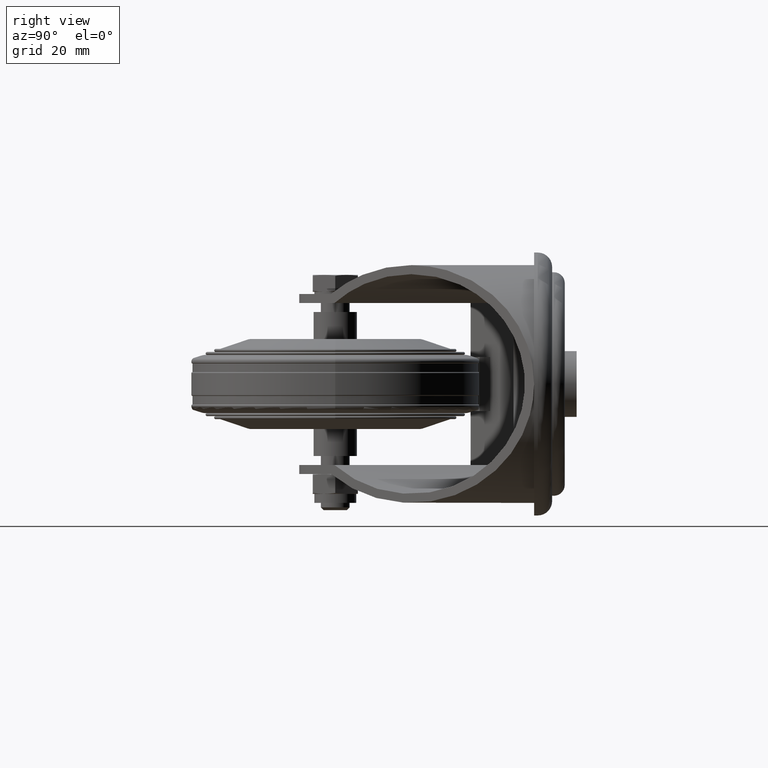
[diagram: clean part render]
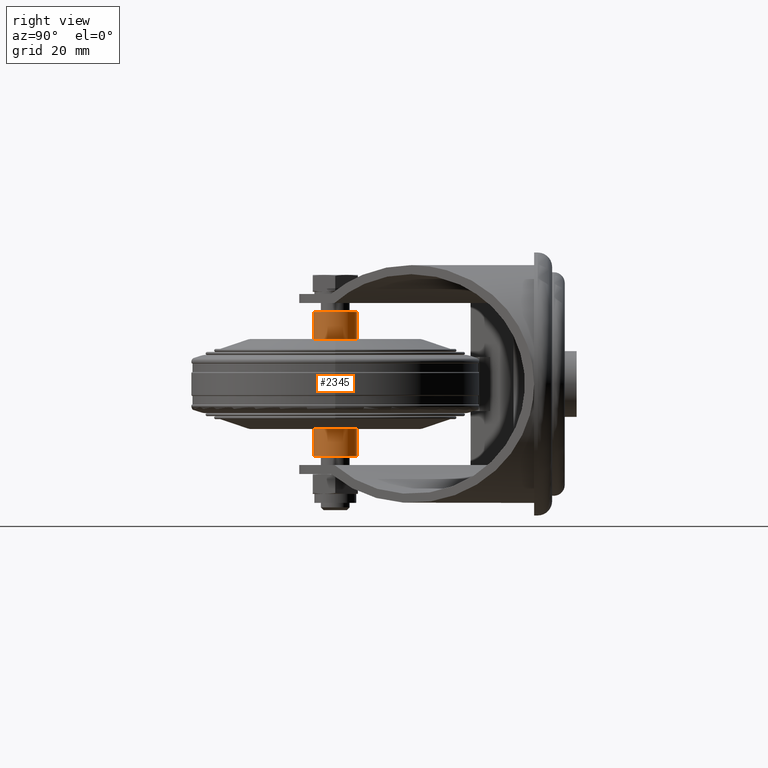
[diagram: same view with one face highlighted and labeled with its STEP entity id]
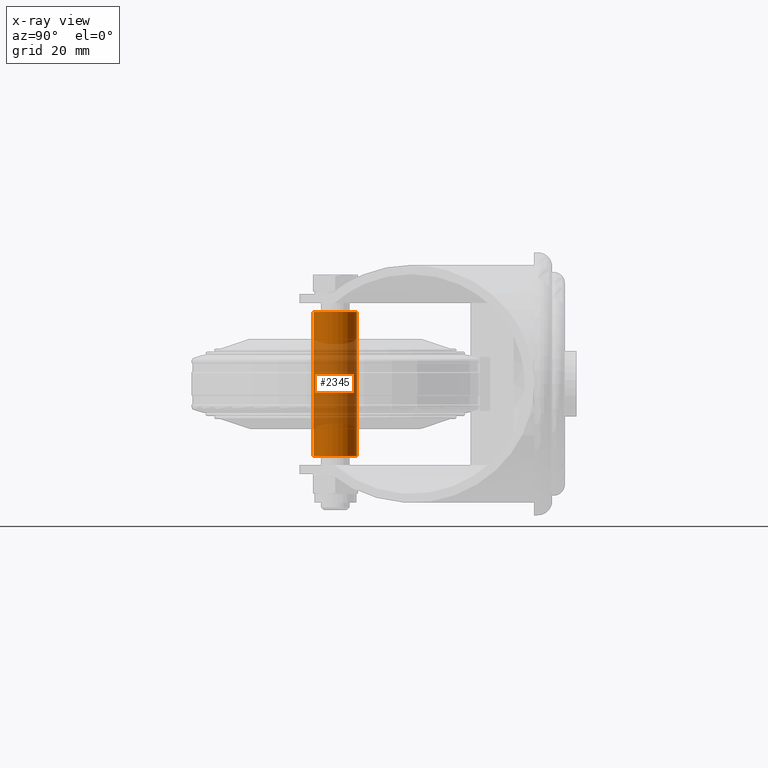
[diagram: x-ray of the same camera — body ghosted, the highlighted face saturated]
A machine part, right view. The second image highlights one B-rep face of the part: STEP entity #2345.
The next image is the same camera in x-ray: the body ghosted, the highlighted face saturated — about 57% of this face is hidden behind the body in this view.
In plain terms, the highlighted cylindrical surface (bore or boss wall) has radius 6 mm, axis along (0, 0, -1).
Its self-contained STEP definition (entity closure, byte-faithful):
#364=FACE_OUTER_BOUND('',#529,.T.);
#529=EDGE_LOOP('',(#1976,#1977,#1978,#1979));
#660=CIRCLE('',#2661,6.);
#662=CIRCLE('',#2664,6.);
#871=LINE('',#4024,#1015);
#1015=VECTOR('',#3228,6.);
#1165=VERTEX_POINT('',#4016);
#1167=VERTEX_POINT('',#4021);
#1443=EDGE_CURVE('',#1165,#1165,#660,.T.);
#1445=EDGE_CURVE('',#1167,#1167,#662,.T.);
#1446=EDGE_CURVE('',#1167,#1165,#871,.T.);
#1976=ORIENTED_EDGE('',*,*,#1445,.F.);
#1977=ORIENTED_EDGE('',*,*,#1446,.T.);
#1978=ORIENTED_EDGE('',*,*,#1443,.T.);
#1979=ORIENTED_EDGE('',*,*,#1446,.F.);
#2253=CYLINDRICAL_SURFACE('',#2665,6.);
#2345=ADVANCED_FACE('',(#364),#2253,.T.);
#2661=AXIS2_PLACEMENT_3D('',#4017,#3218,#3219);
#2664=AXIS2_PLACEMENT_3D('',#4022,#3224,#3225);
#2665=AXIS2_PLACEMENT_3D('',#4023,#3226,#3227);
#3218=DIRECTION('center_axis',(1.,0.,0.));
#3219=DIRECTION('ref_axis',(0.,0.,-1.));
#3224=DIRECTION('center_axis',(1.,0.,0.));
#3225=DIRECTION('ref_axis',(0.,0.,-1.));
#3226=DIRECTION('center_axis',(1.,0.,0.));
#3227=DIRECTION('ref_axis',(0.,0.,-1.));
#3228=DIRECTION('',(-1.,0.,0.));
#4016=CARTESIAN_POINT('',(10.3,-7.34788079488412E-16,6.));
#4017=CARTESIAN_POINT('Origin',(10.3,0.,0.));
#4021=CARTESIAN_POINT('',(50.3,-7.34788079488412E-16,6.));
#4022=CARTESIAN_POINT('Origin',(50.3,0.,0.));
#4023=CARTESIAN_POINT('Origin',(50.3,0.,0.));
#4024=CARTESIAN_POINT('',(50.3,-7.34788079488412E-16,6.));